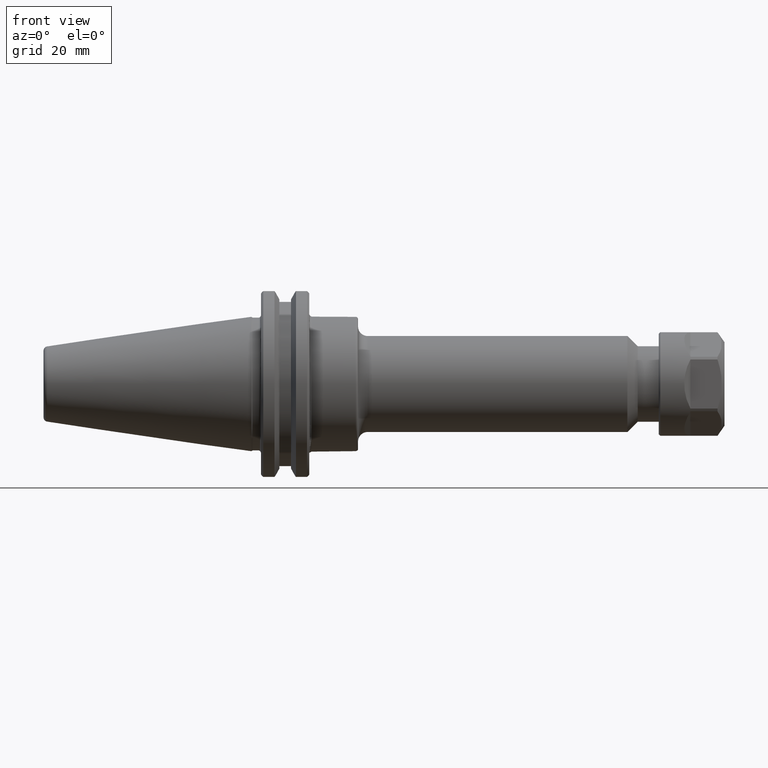
[diagram: clean part render]
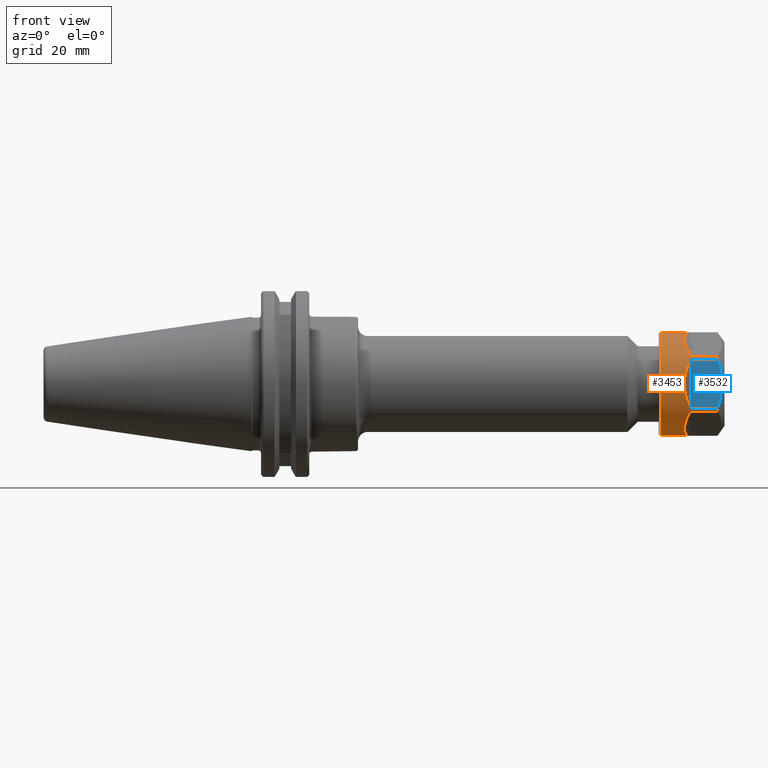
[diagram: same view with the hole feature highlighted: cylindrical wall and planar end face, labeled with their STEP entity ids]
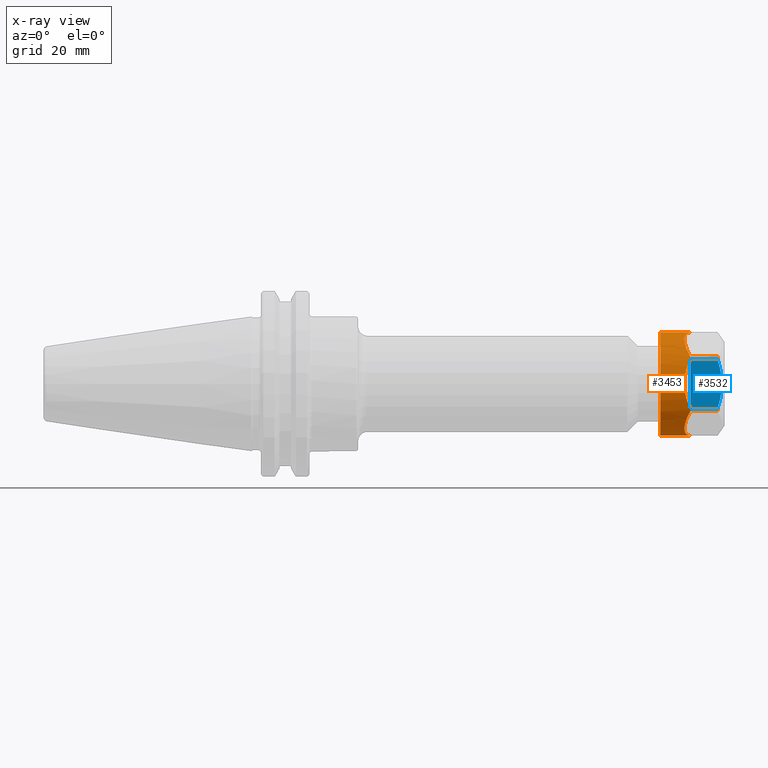
[diagram: x-ray of the same camera — body ghosted, the hole faces saturated]
A machine part, front view. The highlighted faces form one hole feature of diameter 34.036 mm: the cylindrical wall (entity #3453, orange) and its adjacent planar end face (entity #3532, blue) — they share a circular edge in the B-rep.
The next image is the same camera in x-ray (body ghosted, the hole faces saturated) — the bore reads through the body.
Wall:
#3196=CARTESIAN_POINT('',(0.83,0.67,8.204863E-017));
#3197=VERTEX_POINT('',#3196);
#3198=CARTESIAN_POINT('',(0.83,0.0,0.0));
#3199=DIRECTION('',(1.0,0.0,0.0));
#3200=DIRECTION('',(0.0,-1.0,0.0));
#3201=AXIS2_PLACEMENT_3D('',#3198,#3199,#3200);
#3202=CIRCLE('',#3201,0.67);
#3203=EDGE_CURVE('',#3197,#3197,#3202,.T.);
#3239=CARTESIAN_POINT('',(0.47,0.0,0.0));
#3240=DIRECTION('',(1.0,0.0,0.0));
#3241=DIRECTION('',(0.0,1.0,0.0));
#3242=AXIS2_PLACEMENT_3D('',#3239,#3240,#3241);
#3243=CYLINDRICAL_SURFACE('',#3242,0.67);
#3244=CARTESIAN_POINT('',(0.44,-0.02004545830265,-0.669700066896694));
#3245=VERTEX_POINT('',#3244);
#3246=CARTESIAN_POINT('',(0.09,-0.02004545830265,-0.669700066896694));
#3247=VERTEX_POINT('',#3246);
#3248=CARTESIAN_POINT('',(0.44,-0.02004545830265,-0.669700066896694));
#3249=DIRECTION('',(-1.0,0.0,0.0));
#3250=VECTOR('',#3249,0.35);
#3251=LINE('',#3248,#3250);
#3252=EDGE_CURVE('',#3245,#3247,#3251,.T.);
#3253=ORIENTED_EDGE('',*,*,#3252,.T.);
#3254=CARTESIAN_POINT('',(0.09,0.020045458302649,-0.669700066896694));
#3255=VERTEX_POINT('',#3254);
#3256=CARTESIAN_POINT('',(0.09,0.0,0.0));
#3257=DIRECTION('',(1.0,0.0,0.0));
#3258=DIRECTION('',(0.0,1.0,0.0));
#3259=AXIS2_PLACEMENT_3D('',#3256,#3257,#3258);
#3260=CIRCLE('',#3259,0.67);
#3261=EDGE_CURVE('',#3247,#3255,#3260,.T.);
#3262=ORIENTED_EDGE('',*,*,#3261,.T.);
#3263=CARTESIAN_POINT('',(0.44,0.020045458302649,-0.669700066896694));
#3264=VERTEX_POINT('',#3263);
#3265=CARTESIAN_POINT('',(0.09,0.020045458302649,-0.669700066896694));
#3266=DIRECTION('',(1.0,0.0,0.0));
#3267=VECTOR('',#3266,0.35);
#3268=LINE('',#3265,#3267);
#3269=EDGE_CURVE('',#3255,#3264,#3268,.T.);
#3270=ORIENTED_EDGE('',*,*,#3269,.T.);
#3271=CARTESIAN_POINT('',(0.44,0.56995454169735,-0.352209909568944));
#3272=VERTEX_POINT('',#3271);
#3273=CARTESIAN_POINT('',(-0.15,0.0,0.0));
#3274=DIRECTION('',(0.707106781186548,-0.353553390593273,0.612372435695795));
#3275=DIRECTION('',(0.707106781186547,0.353553390593274,-0.612372435695795));
#3276=AXIS2_PLACEMENT_3D('',#3273,#3274,#3275);
#3277=ELLIPSE('',#3276,0.947523086789973,0.67);
#3278=EDGE_CURVE('',#3264,#3272,#3277,.T.);
#3279=ORIENTED_EDGE('',*,*,#3278,.T.);
#3280=CARTESIAN_POINT('',(0.09,0.56995454169735,-0.352209909568944));
#3281=VERTEX_POINT('',#3280);
#3282=CARTESIAN_POINT('',(0.44,0.56995454169735,-0.352209909568944));
#3283=DIRECTION('',(-1.0,0.0,0.0));
#3284=VECTOR('',#3283,0.35);
#3285=LINE('',#3282,#3284);
#3286=EDGE_CURVE('',#3272,#3281,#3285,.T.);
#3287=ORIENTED_EDGE('',*,*,#3286,.T.);
#3288=CARTESIAN_POINT('',(0.09,0.59,-0.317490157327751));
#3289=VERTEX_POINT('',#3288);
#3290=CARTESIAN_POINT('',(0.09,0.0,0.0));
#3291=DIRECTION('',(1.0,0.0,0.0));
#3292=DIRECTION('',(0.0,1.0,0.0));
#3293=AXIS2_PLACEMENT_3D('',#3290,#3291,#3292);
#3294=CIRCLE('',#3293,0.67);
#3295=EDGE_CURVE('',#3281,#3289,#3294,.T.);
#3296=ORIENTED_EDGE('',*,*,#3295,.T.);
#3297=CARTESIAN_POINT('',(0.44,0.59,-0.317490157327751));
#3298=VERTEX_POINT('',#3297);
#3299=CARTESIAN_POINT('',(0.09,0.59,-0.317490157327751));
#3300=DIRECTION('',(1.0,0.0,0.0));
#3301=VECTOR('',#3300,0.35);
#3302=LINE('',#3299,#3301);
#3303=EDGE_CURVE('',#3289,#3298,#3302,.T.);
#3304=ORIENTED_EDGE('',*,*,#3303,.T.);
#3305=CARTESIAN_POINT('',(0.44,0.59,0.317490157327751));
#3306=VERTEX_POINT('',#3305);
#3307=CARTESIAN_POINT('',(-0.15,0.0,0.0));
#3308=DIRECTION('',(0.707106781186548,-0.707106781186547,0.0));
#3309=DIRECTION('',(0.707106781186547,0.707106781186548,0.0));
#3310=AXIS2_PLACEMENT_3D('',#3307,#3308,#3309);
#3311=ELLIPSE('',#3310,0.947523086789974,0.67);
#3312=EDGE_CURVE('',#3298,#3306,#3311,.T.);
#3313=ORIENTED_EDGE('',*,*,#3312,.T.);
#3314=CARTESIAN_POINT('',(0.09,0.59,0.317490157327751));
#3315=VERTEX_POINT('',#3314);
#3316=CARTESIAN_POINT('',(0.44,0.59,0.317490157327751));
#3317=DIRECTION('',(-1.0,0.0,0.0));
#3318=VECTOR('',#3317,0.35);
#3319=LINE('',#3316,#3318);
#3320=EDGE_CURVE('',#3306,#3315,#3319,.T.);
#3321=ORIENTED_EDGE('',*,*,#3320,.T.);
#3322=CARTESIAN_POINT('',(0.09,0.56995454169735,0.352209909568943));
#3323=VERTEX_POINT('',#3322);
#3324=CARTESIAN_POINT('',(0.09,0.0,0.0));
#3325=DIRECTION('',(1.0,0.0,0.0));
#3326=DIRECTION('',(0.0,1.0,0.0));
#3327=AXIS2_PLACEMENT_3D('',#3324,#3325,#3326);
#3328=CIRCLE('',#3327,0.67);
#3329=EDGE_CURVE('',#3315,#3323,#3328,.T.);
#3330=ORIENTED_EDGE('',*,*,#3329,.T.);
#3331=CARTESIAN_POINT('',(0.44,0.569954541697351,0.352209909568943));
#3332=VERTEX_POINT('',#3331);
#3333=CARTESIAN_POINT('',(0.09,0.569954541697351,0.352209909568943));
#3334=DIRECTION('',(1.0,0.0,0.0));
#3335=VECTOR('',#3334,0.35);
#3336=LINE('',#3333,#3335);
#3337=EDGE_CURVE('',#3323,#3332,#3336,.T.);
#3338=ORIENTED_EDGE('',*,*,#3337,.T.);
#3339=CARTESIAN_POINT('',(0.44,0.020045458302649,0.669700066896694));
#3340=VERTEX_POINT('',#3339);
#3341=CARTESIAN_POINT('',(-0.15,0.0,0.0));
#3342=DIRECTION('',(0.707106781186548,-0.353553390593274,-0.612372435695794));
#3343=DIRECTION('',(0.707106781186547,0.353553390593274,0.612372435695795));
#3344=AXIS2_PLACEMENT_3D('',#3341,#3342,#3343);
#3345=ELLIPSE('',#3344,0.947523086789973,0.67);
#3346=EDGE_CURVE('',#3332,#3340,#3345,.T.);
#3347=ORIENTED_EDGE('',*,*,#3346,.T.);
#3348=CARTESIAN_POINT('',(0.09,0.02004545830265,0.669700066896694));
#3349=VERTEX_POINT('',#3348);
#3350=CARTESIAN_POINT('',(0.44,0.020045458302649,0.669700066896694));
#3351=DIRECTION('',(-1.0,0.0,0.0));
#3352=VECTOR('',#3351,0.35);
#3353=LINE('',#3350,#3352);
#3354=EDGE_CURVE('',#3340,#3349,#3353,.T.);
#3355=ORIENTED_EDGE('',*,*,#3354,.T.);
#3356=CARTESIAN_POINT('',(0.09,-0.020045458302649,0.669700066896694));
#3357=VERTEX_POINT('',#3356);
#3358=CARTESIAN_POINT('',(0.09,0.0,0.0));
#3359=DIRECTION('',(1.0,0.0,0.0));
#3360=DIRECTION('',(0.0,1.0,0.0));
#3361=AXIS2_PLACEMENT_3D('',#3358,#3359,#3360);
#3362=CIRCLE('',#3361,0.67);
#3363=EDGE_CURVE('',#3349,#3357,#3362,.T.);
#3364=ORIENTED_EDGE('',*,*,#3363,.T.);
#3365=CARTESIAN_POINT('',(0.44,-0.020045458302649,0.669700066896694));
#3366=VERTEX_POINT('',#3365);
#3367=CARTESIAN_POINT('',(0.09,-0.020045458302649,0.669700066896694));
#3368=DIRECTION('',(1.0,0.0,0.0));
#3369=VECTOR('',#3368,0.35);
#3370=LINE('',#3367,#3369);
#3371=EDGE_CURVE('',#3357,#3366,#3370,.T.);
#3372=ORIENTED_EDGE('',*,*,#3371,.T.);
#3373=CARTESIAN_POINT('',(0.44,-0.56995454169735,0.352209909568943));
#3374=VERTEX_POINT('',#3373);
#3375=CARTESIAN_POINT('',(-0.15,0.0,0.0));
#3376=DIRECTION('',(0.707106781186548,0.353553390593274,-0.612372435695795));
#3377=DIRECTION('',(-0.707106781186547,0.353553390593274,-0.612372435695795));
#3378=AXIS2_PLACEMENT_3D('',#3375,#3376,#3377);
#3379=ELLIPSE('',#3378,0.947523086789974,0.67);
#3380=EDGE_CURVE('',#3366,#3374,#3379,.T.);
#3381=ORIENTED_EDGE('',*,*,#3380,.T.);
#3382=CARTESIAN_POINT('',(0.09,-0.56995454169735,0.352209909568943));
#3383=VERTEX_POINT('',#3382);
#3384=CARTESIAN_POINT('',(0.44,-0.56995454169735,0.352209909568944));
#3385=DIRECTION('',(-1.0,0.0,0.0));
#3386=VECTOR('',#3385,0.35);
#3387=LINE('',#3384,#3386);
#3388=EDGE_CURVE('',#3374,#3383,#3387,.T.);
#3389=ORIENTED_EDGE('',*,*,#3388,.T.);
#3390=CARTESIAN_POINT('',(0.09,-0.59,0.317490157327751));
#3391=VERTEX_POINT('',#3390);
#3392=CARTESIAN_POINT('',(0.09,0.0,0.0));
#3393=DIRECTION('',(1.0,0.0,0.0));
#3394=DIRECTION('',(0.0,1.0,0.0));
#3395=AXIS2_PLACEMENT_3D('',#3392,#3393,#3394);
#3396=CIRCLE('',#3395,0.67);
#3397=EDGE_CURVE('',#3383,#3391,#3396,.T.);
#3398=ORIENTED_EDGE('',*,*,#3397,.T.);
#3399=CARTESIAN_POINT('',(0.44,-0.59,0.317490157327751));
#3400=VERTEX_POINT('',#3399);
#3401=CARTESIAN_POINT('',(0.09,-0.59,0.317490157327751));
#3402=DIRECTION('',(1.0,0.0,0.0));
#3403=VECTOR('',#3402,0.35);
#3404=LINE('',#3401,#3403);
#3405=EDGE_CURVE('',#3391,#3400,#3404,.T.);
#3406=ORIENTED_EDGE('',*,*,#3405,.T.);
#3407=CARTESIAN_POINT('',(0.44,-0.59,-0.317490157327751));
#3408=VERTEX_POINT('',#3407);
#3409=CARTESIAN_POINT('',(-0.15,0.0,0.0));
#3410=DIRECTION('',(0.707106781186548,0.707106781186547,-8.659275E-017));
#3411=DIRECTION('',(-0.707106781186547,0.707106781186548,0.0));
#3412=AXIS2_PLACEMENT_3D('',#3409,#3410,#3411);
#3413=ELLIPSE('',#3412,0.947523086789974,0.67);
#3414=EDGE_CURVE('',#3400,#3408,#3413,.T.);
#3415=ORIENTED_EDGE('',*,*,#3414,.T.);
#3416=CARTESIAN_POINT('',(0.09,-0.59,-0.317490157327751));
#3417=VERTEX_POINT('',#3416);
#3418=CARTESIAN_POINT('',(0.44,-0.59,-0.317490157327751));
#3419=DIRECTION('',(-1.0,0.0,0.0));
#3420=VECTOR('',#3419,0.35);
#3421=LINE('',#3418,#3420);
#3422=EDGE_CURVE('',#3408,#3417,#3421,.T.);
#3423=ORIENTED_EDGE('',*,*,#3422,.T.);
#3424=CARTESIAN_POINT('',(0.09,-0.569954541697351,-0.352209909568943));
#3425=VERTEX_POINT('',#3424);
#3426=CARTESIAN_POINT('',(0.09,0.0,0.0));
#3427=DIRECTION('',(1.0,0.0,0.0));
#3428=DIRECTION('',(0.0,1.0,0.0));
#3429=AXIS2_PLACEMENT_3D('',#3426,#3427,#3428);
#3430=CIRCLE('',#3429,0.67);
#3431=EDGE_CURVE('',#3417,#3425,#3430,.T.);
#3432=ORIENTED_EDGE('',*,*,#3431,.T.);
#3433=CARTESIAN_POINT('',(0.44,-0.569954541697351,-0.352209909568943));
#3434=VERTEX_POINT('',#3433);
#3435=CARTESIAN_POINT('',(0.09,-0.569954541697351,-0.352209909568943));
#3436=DIRECTION('',(1.0,0.0,0.0));
#3437=VECTOR('',#3436,0.35);
#3438=LINE('',#3435,#3437);
#3439=EDGE_CURVE('',#3425,#3434,#3438,.T.);
#3440=ORIENTED_EDGE('',*,*,#3439,.T.);
#3441=CARTESIAN_POINT('',(-0.15,0.0,0.0));
#3442=DIRECTION('',(0.707106781186548,0.353553390593274,0.612372435695794));
#3443=DIRECTION('',(-0.707106781186547,0.353553390593274,0.612372435695795));
#3444=AXIS2_PLACEMENT_3D('',#3441,#3442,#3443);
#3445=ELLIPSE('',#3444,0.947523086789974,0.67);
#3446=EDGE_CURVE('',#3434,#3245,#3445,.T.);
#3447=ORIENTED_EDGE('',*,*,#3446,.T.);
#3448=EDGE_LOOP('',(#3253,#3262,#3270,#3279,#3287,#3296,#3304,#3313,#3321,#3330,#3338,#3347,#3355,#3364,#3372,#3381,#3389,#3398,#3406,#3415,#3423,#3432,#3440,#3447));
#3449=FACE_OUTER_BOUND('',#3448,.T.);
#3450=ORIENTED_EDGE('',*,*,#3203,.F.);
#3451=EDGE_LOOP('',(#3450));
#3452=FACE_BOUND('',#3451,.T.);
#3453=ADVANCED_FACE('',(#3449,#3452),#3243,.T.);
End face:
#3244=CARTESIAN_POINT('',(0.44,-0.02004545830265,-0.669700066896694));
#3245=VERTEX_POINT('',#3244);
#3246=CARTESIAN_POINT('',(0.09,-0.02004545830265,-0.669700066896694));
#3247=VERTEX_POINT('',#3246);
#3248=CARTESIAN_POINT('',(0.44,-0.02004545830265,-0.669700066896694));
#3249=DIRECTION('',(-1.0,0.0,0.0));
#3250=VECTOR('',#3249,0.35);
#3251=LINE('',#3248,#3250);
#3252=EDGE_CURVE('',#3245,#3247,#3251,.T.);
#3424=CARTESIAN_POINT('',(0.09,-0.569954541697351,-0.352209909568943));
#3425=VERTEX_POINT('',#3424);
#3433=CARTESIAN_POINT('',(0.44,-0.569954541697351,-0.352209909568943));
#3434=VERTEX_POINT('',#3433);
#3435=CARTESIAN_POINT('',(0.09,-0.569954541697351,-0.352209909568943));
#3436=DIRECTION('',(1.0,0.0,0.0));
#3437=VECTOR('',#3436,0.35);
#3438=LINE('',#3435,#3437);
#3439=EDGE_CURVE('',#3425,#3434,#3438,.T.);
#3500=CARTESIAN_POINT('',(0.44,-0.569954541697351,-0.352209909568943));
#3501=DIRECTION('',(0.0,0.866025403784438,-0.5));
#3502=VECTOR('',#3501,0.634980314655502);
#3503=LINE('',#3500,#3502);
#3504=EDGE_CURVE('',#3434,#3245,#3503,.T.);
#3509=CARTESIAN_POINT('',(0.44,-0.295,-0.510954988232819));
#3510=DIRECTION('',(0.0,0.5,0.866025403784438));
#3511=DIRECTION('',(0.0,-0.866025403784438,0.5));
#3512=AXIS2_PLACEMENT_3D('',#3509,#3510,#3511);
#3513=PLANE('',#3512);
#3514=ORIENTED_EDGE('',*,*,#3439,.F.);
#3515=CARTESIAN_POINT('',(0.09,-0.02004545830265,-0.669700066896694));
#3516=CARTESIAN_POINT('',(-0.015344656494834,-0.295,-0.510954988232819));
#3517=CARTESIAN_POINT('',(0.09,-0.56995454169735,-0.352209909568943));
#3525=(BOUNDED_CURVE()B_SPLINE_CURVE(2,(#3515,#3516,#3517),.UNSPECIFIED.,.F.,.U.)B_SPLINE_CURVE_WITH_KNOTS((3,3),(0.0,1.637761272471591),.UNSPECIFIED.)CURVE()GEOMETRIC_REPRESENTATION_ITEM()RATIONAL_B_SPLINE_CURVE((1.0,1.135593220338984,1.0))REPRESENTATION_ITEM(''));
#3526=EDGE_CURVE('',#3247,#3425,#3525,.T.);
#3527=ORIENTED_EDGE('',*,*,#3526,.F.);
#3528=ORIENTED_EDGE('',*,*,#3252,.F.);
#3529=ORIENTED_EDGE('',*,*,#3504,.F.);
#3530=EDGE_LOOP('',(#3514,#3527,#3528,#3529));
#3531=FACE_OUTER_BOUND('',#3530,.T.);
#3532=ADVANCED_FACE('',(#3531),#3513,.F.);